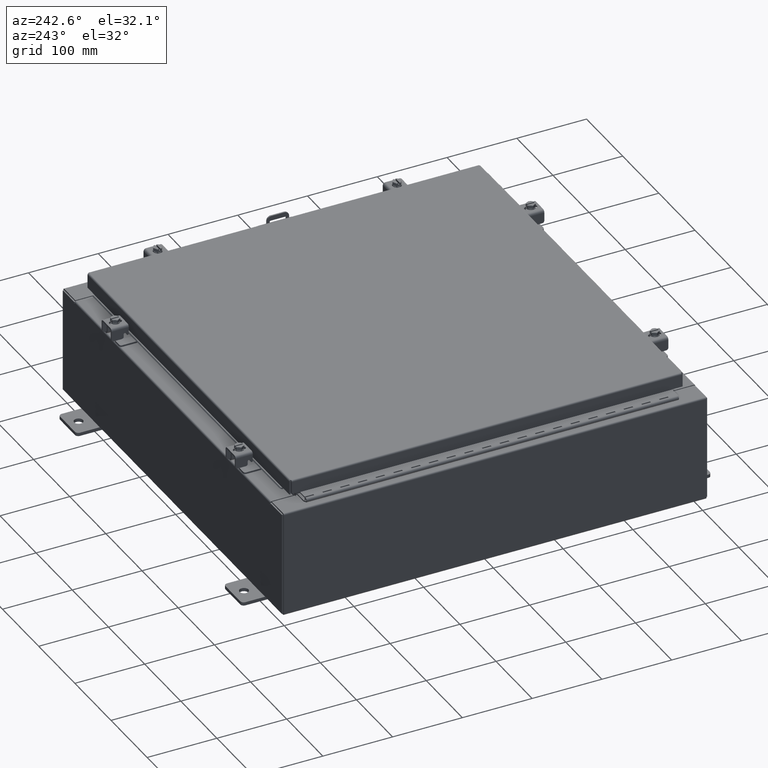
[diagram: clean part render]
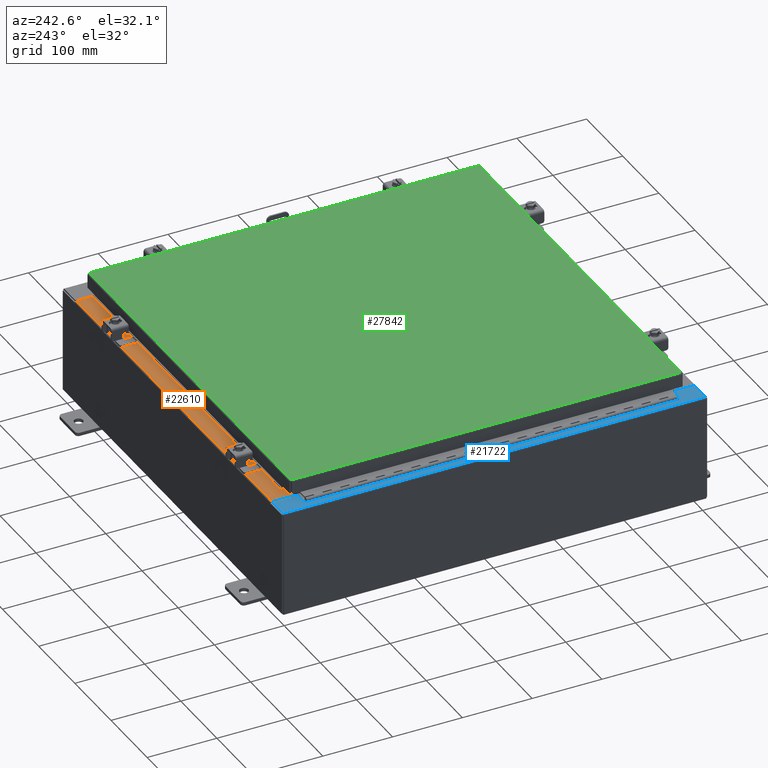
[diagram: same view with three faces highlighted in distinct colors, each labeled with its STEP entity id]
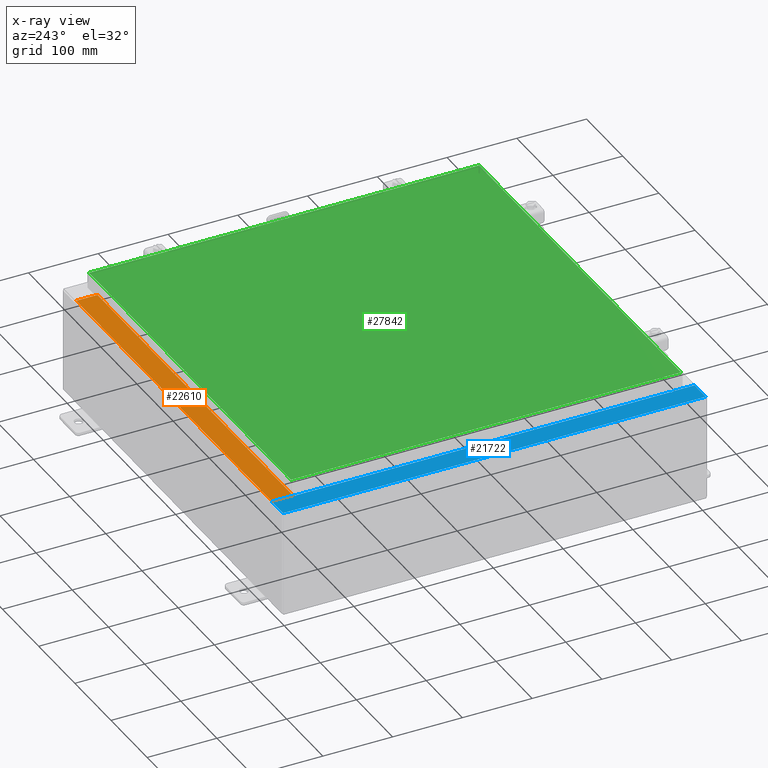
[diagram: x-ray of the same camera — body ghosted, the three highlighted faces saturated]
A machine part, auxiliary view with three faces highlighted in distinct colors.
The next image is the same camera in x-ray (body ghosted, the three faces saturated) — at least one of them is partly hidden behind the body in this view.
Their STEP definitions:

[orange] entity #22610 — the highlighted planar face has unit normal (0, 0, 1).
#4 = VECTOR ( 'NONE', #13718, 39.37007874015748100 ) ;
#2397 = DIRECTION ( 'NONE',  ( -0.0000000000000000000, -1.000000000000000000, 3.566381192773190000E-015 ) ) ;
#2938 = LINE ( 'NONE', #11559, #23855 ) ;
#3006 = CARTESIAN_POINT ( 'NONE',  ( 10.63720000000000200, -1.300299999999999800, 3.000000000000005300 ) ) ;
#3404 = ORIENTED_EDGE ( 'NONE', *, *, #9923, .T. ) ;
#4051 = CARTESIAN_POINT ( 'NONE',  ( 10.63720000000000400, -0.08769999999999965300, 3.000000000000000900 ) ) ;
#4401 = CARTESIAN_POINT ( 'NONE',  ( 10.63720000000000400, -1.287299999999999900, 3.000000000000005300 ) ) ;
#5490 = VERTEX_POINT ( 'NONE', #22397 ) ;
#8051 = DIRECTION ( 'NONE',  ( -1.000000000000000000, 2.568202152506545800E-017, -9.159187855938968600E-032 ) ) ;
#8753 = CARTESIAN_POINT ( 'NONE',  ( -2.252313287748515100E-018, -0.08770000000000000000, 3.000000000000001300 ) ) ;
#9199 = AXIS2_PLACEMENT_3D ( 'NONE', #11624, #22274, #10329 ) ;
#9923 = EDGE_CURVE ( 'NONE', #27653, #31348, #16707, .T. ) ;
#10329 = DIRECTION ( 'NONE',  ( 0.0000000000000000000, -1.000000000000000000, 3.566381192773190000E-015 ) ) ;
#10727 = ORIENTED_EDGE ( 'NONE', *, *, #23465, .F. ) ;
#11218 = CARTESIAN_POINT ( 'NONE',  ( 10.63720000000000200, -1.287299999999999900, 3.000000000000005300 ) ) ;
#11559 = CARTESIAN_POINT ( 'NONE',  ( -10.63720000000000200, -0.07469999999999973900, 3.000000000000000900 ) ) ;
#11624 = CARTESIAN_POINT ( 'NONE',  ( 0.0000000000000000000, 1.069354855923099900E-014, 3.000000000000000900 ) ) ;
#12898 = VECTOR ( 'NONE', #8051, 39.37007874015748100 ) ;
#13609 = ORIENTED_EDGE ( 'NONE', *, *, #28228, .F. ) ;
#13718 = DIRECTION ( 'NONE',  ( -1.000000000000000000, 0.0000000000000000000, 0.0000000000000000000 ) ) ;
#15052 = VERTEX_POINT ( 'NONE', #11218 ) ;
#16510 = VECTOR ( 'NONE', #2397, 39.37007874015748100 ) ;
#16707 = LINE ( 'NONE', #8753, #12898 ) ;
#20388 = FACE_OUTER_BOUND ( 'NONE', #30150, .T. ) ;
#20521 = EDGE_CURVE ( 'NONE', #27653, #15052, #21920, .T. ) ;
#21920 = LINE ( 'NONE', #3006, #16510 ) ;
#22274 = DIRECTION ( 'NONE',  ( 0.0000000000000000000, 3.566381192773190000E-015, 1.000000000000000000 ) ) ;
#22397 = CARTESIAN_POINT ( 'NONE',  ( -10.63720000000000200, -1.287299999999999200, 3.000000000000005300 ) ) ;
#22403 = LINE ( 'NONE', #4401, #4 ) ;
#22610 = ADVANCED_FACE ( 'NONE', ( #20388 ), #26137, .T. ) ;
#23465 = EDGE_CURVE ( 'NONE', #15052, #5490, #22403, .T. ) ;
#23855 = VECTOR ( 'NONE', #27206, 39.37007874015748100 ) ;
#25917 = ORIENTED_EDGE ( 'NONE', *, *, #20521, .F. ) ;
#26137 = PLANE ( 'NONE',  #9199 ) ;
#27206 = DIRECTION ( 'NONE',  ( -0.0000000000000000000, 1.000000000000000000, -3.566381192773190000E-015 ) ) ;
#27642 = CARTESIAN_POINT ( 'NONE',  ( -10.63720000000000200, -0.08770000000000000000, 3.000000000000000900 ) ) ;
#27653 = VERTEX_POINT ( 'NONE', #4051 ) ;
#28228 = EDGE_CURVE ( 'NONE', #5490, #31348, #2938, .T. ) ;
#30150 = EDGE_LOOP ( 'NONE', ( #13609, #10727, #25917, #3404 ) ) ;
#31348 = VERTEX_POINT ( 'NONE', #27642 ) ;

[blue] entity #21722 — the highlighted planar face has unit normal (0, 0, -1).
#123 = CARTESIAN_POINT ( 'NONE',  ( -11.91230000000002300, 11.92529999999999800, 5.925299999999999100 ) ) ;
#1130 = VERTEX_POINT ( 'NONE', #28065 ) ;
#1380 = CARTESIAN_POINT ( 'NONE',  ( -10.75005000000002300, 10.59374999999999800, 5.925300000000008000 ) ) ;
#1526 = DIRECTION ( 'NONE',  ( -1.000000000000000000, 0.0000000000000000000, 0.0000000000000000000 ) ) ;
#1899 = VERTEX_POINT ( 'NONE', #18077 ) ;
#1999 = CARTESIAN_POINT ( 'NONE',  ( -10.71270000000002300, -10.59374999999999800, 5.925300000000008000 ) ) ;
#2055 = EDGE_CURVE ( 'NONE', #32265, #1130, #17137, .T. ) ;
#2380 = ORIENTED_EDGE ( 'NONE', *, *, #32183, .T. ) ;
#2503 = CARTESIAN_POINT ( 'NONE',  ( -10.75005000000002300, -10.59374999999999800, 5.925300000000008000 ) ) ;
#2781 = ORIENTED_EDGE ( 'NONE', *, *, #13941, .F. ) ;
#2805 = EDGE_CURVE ( 'NONE', #31142, #16214, #11737, .T. ) ;
#2951 = EDGE_CURVE ( 'NONE', #3518, #23614, #9357, .T. ) ;
#3471 = EDGE_CURVE ( 'NONE', #31189, #11920, #10179, .T. ) ;
#3518 = VERTEX_POINT ( 'NONE', #19153 ) ;
#3977 = CARTESIAN_POINT ( 'NONE',  ( -4.252457061909017700E-014, 0.0000000000000000000, 5.925300000000084400 ) ) ;
#4203 = ORIENTED_EDGE ( 'NONE', *, *, #7977, .T. ) ;
#4562 = EDGE_LOOP ( 'NONE', ( #7911, #30009, #10300, #26083, #2380, #4203, #28663, #5340, #12102, #2781, #20116, #7029 ) ) ;
#4574 = LINE ( 'NONE', #5152, #22873 ) ;
#4914 = VECTOR ( 'NONE', #32032, 39.37007874015748100 ) ;
#4988 = DIRECTION ( 'NONE',  ( -1.000000000000000000, 0.0000000000000000000, 0.0000000000000000000 ) ) ;
#5152 = CARTESIAN_POINT ( 'NONE',  ( -10.75005000000002300, 10.59374999999999800, 5.925300000000008000 ) ) ;
#5340 = ORIENTED_EDGE ( 'NONE', *, *, #23026, .F. ) ;
#6049 = CARTESIAN_POINT ( 'NONE',  ( -10.69970000000002300, -11.92530000000000000, 5.925300000000008000 ) ) ;
#6751 = CARTESIAN_POINT ( 'NONE',  ( -10.69970000000002300, 11.92529999999999800, 5.925300000000008000 ) ) ;
#6874 = CARTESIAN_POINT ( 'NONE',  ( -10.75005000000002300, -10.63109999999999600, 5.925300000000008000 ) ) ;
#6976 = VECTOR ( 'NONE', #25025, 39.37007874015748100 ) ;
#7029 = ORIENTED_EDGE ( 'NONE', *, *, #2951, .F. ) ;
#7535 = VECTOR ( 'NONE', #4988, 39.37007874015748100 ) ;
#7911 = ORIENTED_EDGE ( 'NONE', *, *, #29151, .F. ) ;
#7977 = EDGE_CURVE ( 'NONE', #24444, #1130, #29139, .T. ) ;
#8122 = LINE ( 'NONE', #9597, #18293 ) ;
#8638 = DIRECTION ( 'NONE',  ( -0.0000000000000000000, -1.000000000000000000, -0.0000000000000000000 ) ) ;
#8829 = DIRECTION ( 'NONE',  ( 1.000000000000000000, 0.0000000000000000000, 0.0000000000000000000 ) ) ;
#9343 = DIRECTION ( 'NONE',  ( 1.000000000000000000, -4.379057701015053300E-047, 7.132762385546384700E-015 ) ) ;
#9357 = CIRCLE ( 'NONE', #22257, 0.01867499999999949400 ) ;
#9588 = CARTESIAN_POINT ( 'NONE',  ( -10.69970000000002300, 10.63109999999999600, 5.925300000000008000 ) ) ;
#9597 = CARTESIAN_POINT ( 'NONE',  ( -4.252457061909017700E-014, 11.92529999999999800, 5.925300000000084400 ) ) ;
#10179 = LINE ( 'NONE', #24542, #6976 ) ;
#10300 = ORIENTED_EDGE ( 'NONE', *, *, #32839, .T. ) ;
#10761 = CARTESIAN_POINT ( 'NONE',  ( -10.71270000000002300, 10.59374999999999800, 5.925300000000008000 ) ) ;
#11022 = VERTEX_POINT ( 'NONE', #16167 ) ;
#11072 = CARTESIAN_POINT ( 'NONE',  ( -10.75005000000002300, -10.63109999999999600, 5.925300000000008000 ) ) ;
#11737 = LINE ( 'NONE', #1999, #30541 ) ;
#11920 = VERTEX_POINT ( 'NONE', #6751 ) ;
#12102 = ORIENTED_EDGE ( 'NONE', *, *, #2805, .F. ) ;
#13504 = DIRECTION ( 'NONE',  ( 1.000000000000000000, 0.0000000000000000000, 0.0000000000000000000 ) ) ;
#13825 = CARTESIAN_POINT ( 'NONE',  ( -10.75005000000002300, 10.61242499999999800, 5.925300000000008000 ) ) ;
#13914 = VECTOR ( 'NONE', #9343, 39.37007874015748100 ) ;
#13941 = EDGE_CURVE ( 'NONE', #11022, #31142, #29130, .T. ) ;
#14642 = CARTESIAN_POINT ( 'NONE',  ( -11.91230000000002500, -11.92530000000000000, 5.925299999999999100 ) ) ;
#14698 = AXIS2_PLACEMENT_3D ( 'NONE', #3977, #20787, #15889 ) ;
#15674 = DIRECTION ( 'NONE',  ( 9.163200904511462000E-017, 1.000000000000000000, 6.535893474290396800E-031 ) ) ;
#15889 = DIRECTION ( 'NONE',  ( -1.000000000000000000, 0.0000000000000000000, -7.132762385546384700E-015 ) ) ;
#16167 = CARTESIAN_POINT ( 'NONE',  ( -10.71270000000002300, 10.59374999999999800, 5.925300000000008000 ) ) ;
#16214 = VERTEX_POINT ( 'NONE', #2503 ) ;
#17137 = LINE ( 'NONE', #11072, #29132 ) ;
#17749 = VERTEX_POINT ( 'NONE', #14642 ) ;
#17986 = LINE ( 'NONE', #24622, #7535 ) ;
#18077 = CARTESIAN_POINT ( 'NONE',  ( -11.91230000000002500, 11.92529999999999800, 5.925299999999999100 ) ) ;
#18293 = VECTOR ( 'NONE', #20722, 39.37007874015748100 ) ;
#19153 = CARTESIAN_POINT ( 'NONE',  ( -10.75005000000002300, 10.63109999999999600, 5.925300000000008000 ) ) ;
#19849 = CARTESIAN_POINT ( 'NONE',  ( -10.75005000000002300, -10.61242499999999800, 5.925300000000008000 ) ) ;
#19971 = VECTOR ( 'NONE', #8638, 39.37007874015748100 ) ;
#19979 = DIRECTION ( 'NONE',  ( 1.000000000000000000, 0.0000000000000000000, 0.0000000000000000000 ) ) ;
#20116 = ORIENTED_EDGE ( 'NONE', *, *, #22460, .F. ) ;
#20722 = DIRECTION ( 'NONE',  ( -1.000000000000000000, -4.084933421431495300E-032, -7.132762385546384700E-015 ) ) ;
#20787 = DIRECTION ( 'NONE',  ( 7.132762385546384700E-015, 0.0000000000000000000, -1.000000000000000000 ) ) ;
#20855 = VECTOR ( 'NONE', #15674, 39.37007874015748100 ) ;
#21722 = ADVANCED_FACE ( 'NONE', ( #23343 ), #31033, .F. ) ;
#22257 = AXIS2_PLACEMENT_3D ( 'NONE', #13825, #27411, #13504 ) ;
#22460 = EDGE_CURVE ( 'NONE', #23614, #11022, #4574, .T. ) ;
#22873 = VECTOR ( 'NONE', #19979, 39.37007874015748100 ) ;
#23026 = EDGE_CURVE ( 'NONE', #16214, #32265, #24656, .T. ) ;
#23343 = FACE_OUTER_BOUND ( 'NONE', #4562, .T. ) ;
#23614 = VERTEX_POINT ( 'NONE', #1380 ) ;
#24444 = VERTEX_POINT ( 'NONE', #6049 ) ;
#24542 = CARTESIAN_POINT ( 'NONE',  ( -10.69970000000002300, -3.338884789195309000E-030, 5.925300000000008000 ) ) ;
#24622 = CARTESIAN_POINT ( 'NONE',  ( -10.69970000000002300, 10.63109999999999600, 5.925300000000008000 ) ) ;
#24656 = CIRCLE ( 'NONE', #26992, 0.01867499999999949400 ) ;
#25025 = DIRECTION ( 'NONE',  ( -3.120540565805877600E-031, 1.000000000000000000, -2.225807437035179500E-045 ) ) ;
#26083 = ORIENTED_EDGE ( 'NONE', *, *, #29120, .F. ) ;
#26992 = AXIS2_PLACEMENT_3D ( 'NONE', #19849, #27798, #28088 ) ;
#27411 = DIRECTION ( 'NONE',  ( -7.132762385546384700E-015, -0.0000000000000000000, 1.000000000000000000 ) ) ;
#27798 = DIRECTION ( 'NONE',  ( -7.132762385546384700E-015, -0.0000000000000000000, 1.000000000000000000 ) ) ;
#28065 = CARTESIAN_POINT ( 'NONE',  ( -10.69970000000002300, -10.63109999999999800, 5.925300000000008000 ) ) ;
#28088 = DIRECTION ( 'NONE',  ( 1.000000000000000000, 0.0000000000000000000, 0.0000000000000000000 ) ) ;
#28663 = ORIENTED_EDGE ( 'NONE', *, *, #2055, .F. ) ;
#28866 = LINE ( 'NONE', #29593, #13914 ) ;
#29120 = EDGE_CURVE ( 'NONE', #17749, #1899, #30890, .T. ) ;
#29130 = LINE ( 'NONE', #10761, #19971 ) ;
#29132 = VECTOR ( 'NONE', #8829, 39.37007874015748100 ) ;
#29139 = LINE ( 'NONE', #32137, #4914 ) ;
#29151 = EDGE_CURVE ( 'NONE', #31189, #3518, #17986, .T. ) ;
#29593 = CARTESIAN_POINT ( 'NONE',  ( -4.252457061909017700E-014, -11.92530000000000000, 5.925300000000084400 ) ) ;
#30009 = ORIENTED_EDGE ( 'NONE', *, *, #3471, .T. ) ;
#30541 = VECTOR ( 'NONE', #1526, 39.37007874015748100 ) ;
#30890 = LINE ( 'NONE', #123, #20855 ) ;
#31033 = PLANE ( 'NONE',  #14698 ) ;
#31142 = VERTEX_POINT ( 'NONE', #31452 ) ;
#31189 = VERTEX_POINT ( 'NONE', #9588 ) ;
#31452 = CARTESIAN_POINT ( 'NONE',  ( -10.71270000000002300, -10.59374999999999800, 5.925300000000008000 ) ) ;
#32032 = DIRECTION ( 'NONE',  ( -3.120540565805877600E-031, 1.000000000000000000, -2.225807437035179500E-045 ) ) ;
#32137 = CARTESIAN_POINT ( 'NONE',  ( -10.69970000000002300, -3.338884789195309000E-030, 5.925300000000008000 ) ) ;
#32183 = EDGE_CURVE ( 'NONE', #17749, #24444, #28866, .T. ) ;
#32265 = VERTEX_POINT ( 'NONE', #6874 ) ;
#32839 = EDGE_CURVE ( 'NONE', #11920, #1899, #8122, .T. ) ;

[green] entity #27842 — the highlighted planar face has unit normal (0, 0, -1).
#956 = LINE ( 'NONE', #20907, #15222 ) ;
#1829 = EDGE_CURVE ( 'NONE', #32157, #7481, #31591, .T. ) ;
#1946 = VECTOR ( 'NONE', #18696, 39.37007874015748100 ) ;
#3653 = EDGE_CURVE ( 'NONE', #12004, #32157, #21511, .T. ) ;
#5807 = DIRECTION ( 'NONE',  ( 0.0000000000000000000, -1.000000000000000000, 0.0000000000000000000 ) ) ;
#6676 = CARTESIAN_POINT ( 'NONE',  ( -10.99030000000000500, 11.00629999999999600, -1.348849946871729900E-015 ) ) ;
#7279 = EDGE_CURVE ( 'NONE', #13086, #12004, #12311, .T. ) ;
#7481 = VERTEX_POINT ( 'NONE', #6676 ) ;
#7490 = ORIENTED_EDGE ( 'NONE', *, *, #1829, .T. ) ;
#7947 = CARTESIAN_POINT ( 'NONE',  ( 10.99029999999999800, 11.00629999999999600, -2.048885995248197400E-016 ) ) ;
#10793 = EDGE_CURVE ( 'NONE', #7481, #13086, #956, .T. ) ;
#12004 = VERTEX_POINT ( 'NONE', #30317 ) ;
#12311 = LINE ( 'NONE', #16377, #1946 ) ;
#13086 = VERTEX_POINT ( 'NONE', #32478 ) ;
#15222 = VECTOR ( 'NONE', #5807, 39.37007874015748100 ) ;
#15476 = EDGE_LOOP ( 'NONE', ( #26778, #17790, #7490, #27612 ) ) ;
#16079 = CARTESIAN_POINT ( 'NONE',  ( 10.99029999999999800, 11.00629999999999600, -2.048885995248197400E-016 ) ) ;
#16377 = CARTESIAN_POINT ( 'NONE',  ( -10.99030000000000000, -11.00630000000000100, 8.878505979408856000E-016 ) ) ;
#17790 = ORIENTED_EDGE ( 'NONE', *, *, #3653, .T. ) ;
#18306 = VECTOR ( 'NONE', #23336, 39.37007874015748100 ) ;
#18696 = DIRECTION ( 'NONE',  ( 1.000000000000000000, -0.0000000000000000000, -0.0000000000000000000 ) ) ;
#20748 = DIRECTION ( 'NONE',  ( 0.0000000000000000000, 1.000000000000000000, 0.0000000000000000000 ) ) ;
#20907 = CARTESIAN_POINT ( 'NONE',  ( -10.99030000000000500, 11.00629999999999600, -1.348849946871729900E-015 ) ) ;
#21511 = LINE ( 'NONE', #29003, #28942 ) ;
#23336 = DIRECTION ( 'NONE',  ( -1.000000000000000000, -0.0000000000000000000, -0.0000000000000000000 ) ) ;
#26464 = DIRECTION ( 'NONE',  ( -1.000000000000000000, 0.0000000000000000000, -0.0000000000000000000 ) ) ;
#26634 = FACE_OUTER_BOUND ( 'NONE', #15476, .T. ) ;
#26765 = AXIS2_PLACEMENT_3D ( 'NONE', #31249, #28740, #26464 ) ;
#26778 = ORIENTED_EDGE ( 'NONE', *, *, #7279, .T. ) ;
#27612 = ORIENTED_EDGE ( 'NONE', *, *, #10793, .T. ) ;
#27842 = ADVANCED_FACE ( 'NONE', ( #26634 ), #28840, .F. ) ;
#28740 = DIRECTION ( 'NONE',  ( 0.0000000000000000000, 0.0000000000000000000, -1.000000000000000000 ) ) ;
#28840 = PLANE ( 'NONE',  #26765 ) ;
#28942 = VECTOR ( 'NONE', #20748, 39.37007874015748100 ) ;
#29003 = CARTESIAN_POINT ( 'NONE',  ( 10.99029999999999600, -11.00630000000000100, -2.048885995248197400E-016 ) ) ;
#30317 = CARTESIAN_POINT ( 'NONE',  ( 10.99029999999999600, -11.00630000000000100, -2.048885995248197400E-016 ) ) ;
#31249 = CARTESIAN_POINT ( 'NONE',  ( 0.0000000000000000000, 0.0000000000000000000, 0.0000000000000000000 ) ) ;
#31591 = LINE ( 'NONE', #7947, #18306 ) ;
#32157 = VERTEX_POINT ( 'NONE', #16079 ) ;
#32478 = CARTESIAN_POINT ( 'NONE',  ( -10.99030000000000000, -11.00630000000000100, 8.878505979408856000E-016 ) ) ;